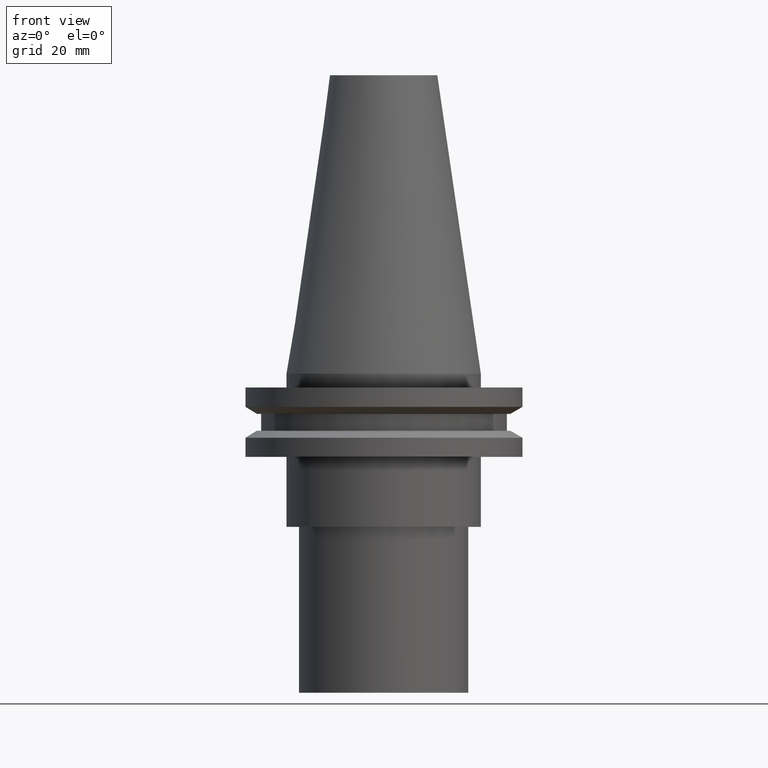
[diagram: clean part render]
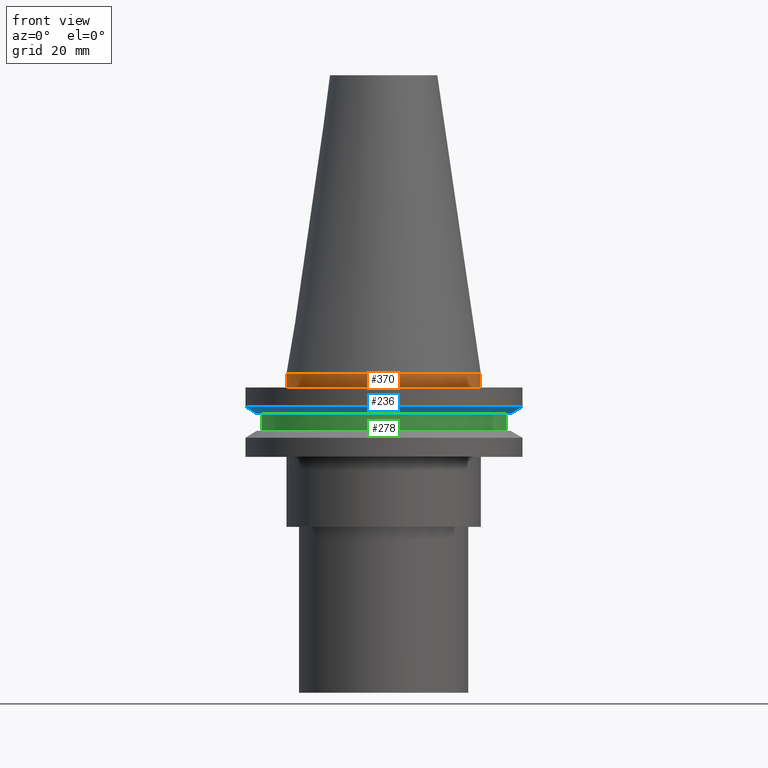
[diagram: same view with three faces highlighted in distinct colors, each labeled with its STEP entity id]
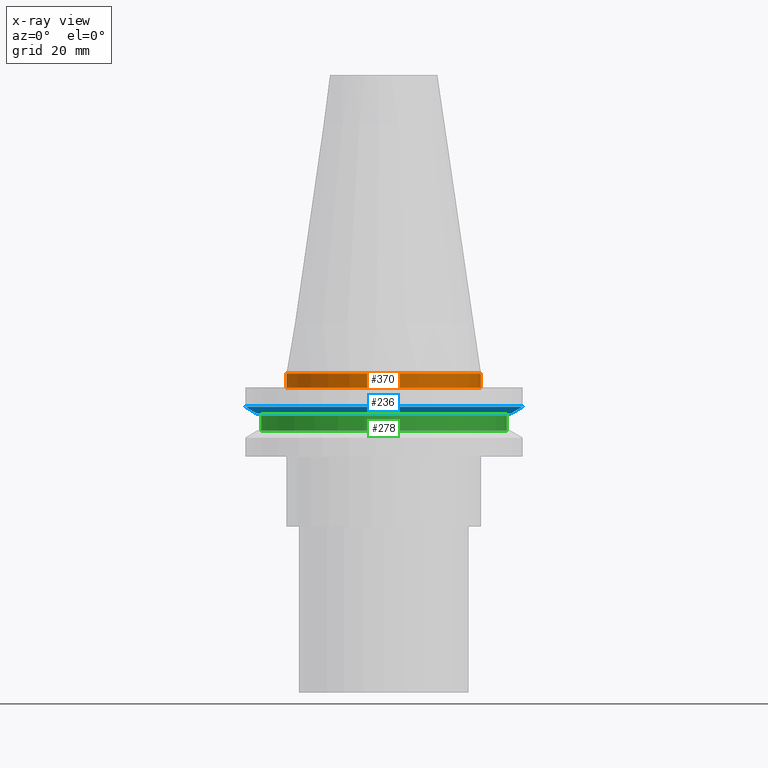
[diagram: x-ray of the same camera — body ghosted, the three highlighted faces saturated]
A machine part, front view with three faces highlighted in distinct colors.
The next image is the same camera in x-ray (body ghosted, the three faces saturated) — at least one of them is partly hidden behind the body in this view.
Their STEP definitions:

[orange] entity #370 — the highlighted cylindrical surface (bore or boss wall) has radius 22.225 mm, axis along (-0, -0, 1).
#37 = CIRCLE ( 'NONE', #250, 22.22500000000000142 ) ;
#88 = DIRECTION ( 'NONE',  ( -0.000000000000000000, -0.000000000000000000, 1.000000000000000000 ) ) ;
#89 = DIRECTION ( 'NONE',  ( -0.000000000000000000, -0.000000000000000000, 1.000000000000000000 ) ) ;
#100 = CARTESIAN_POINT ( 'NONE',  ( 22.22500000000000142, 0.000000000000000000, 0.000000000000000000 ) ) ;
#119 = AXIS2_PLACEMENT_3D ( 'NONE', #253, #299, #155 ) ;
#155 = DIRECTION ( 'NONE',  ( 1.000000000000000000, 0.000000000000000000, 0.000000000000000000 ) ) ;
#161 = CARTESIAN_POINT ( 'NONE',  ( 0.000000000000000000, 0.000000000000000000, 0.000000000000000000 ) ) ;
#169 = EDGE_CURVE ( 'NONE', #194, #194, #37, .T. ) ;
#171 = ORIENTED_EDGE ( 'NONE', *, *, #227, .T. ) ;
#175 = ORIENTED_EDGE ( 'NONE', *, *, #169, .F. ) ;
#181 = FACE_OUTER_BOUND ( 'NONE', #242, .T. ) ;
#194 = VERTEX_POINT ( 'NONE', #100 ) ;
#195 = EDGE_LOOP ( 'NONE', ( #175 ) ) ;
#212 = DIRECTION ( 'NONE',  ( 1.000000000000000000, 0.000000000000000000, 0.000000000000000000 ) ) ;
#227 = EDGE_CURVE ( 'NONE', #254, #254, #329, .T. ) ;
#242 = EDGE_LOOP ( 'NONE', ( #171 ) ) ;
#244 = FACE_OUTER_BOUND ( 'NONE', #195, .T. ) ;
#246 = AXIS2_PLACEMENT_3D ( 'NONE', #356, #88, #212 ) ;
#250 = AXIS2_PLACEMENT_3D ( 'NONE', #161, #89, #333 ) ;
#253 = CARTESIAN_POINT ( 'NONE',  ( 0.000000000000000000, 0.000000000000000000, -3.174999999999997158 ) ) ;
#254 = VERTEX_POINT ( 'NONE', #308 ) ;
#299 = DIRECTION ( 'NONE',  ( -0.000000000000000000, -0.000000000000000000, 1.000000000000000000 ) ) ;
#308 = CARTESIAN_POINT ( 'NONE',  ( 22.22500000000000142, 0.000000000000000000, -3.174999999999997158 ) ) ;
#329 = CIRCLE ( 'NONE', #119, 22.22500000000000142 ) ;
#333 = DIRECTION ( 'NONE',  ( 1.000000000000000000, 0.000000000000000000, 0.000000000000000000 ) ) ;
#356 = CARTESIAN_POINT ( 'NONE',  ( 0.000000000000000000, 0.000000000000000000, 68.25000000000000000 ) ) ;
#370 = ADVANCED_FACE ( 'NONE', ( #244, #181 ), #375, .T. ) ;
#375 = CYLINDRICAL_SURFACE ( 'NONE', #246, 22.22500000000000142 ) ;

[blue] entity #236 — the highlighted conical surface has half-angle 60 deg.
#5 = ORIENTED_EDGE ( 'NONE', *, *, #313, .F. ) ;
#11 = EDGE_LOOP ( 'NONE', ( #226 ) ) ;
#16 = FACE_BOUND ( 'NONE', #11, .T. ) ;
#34 = CIRCLE ( 'NONE', #218, 28.97919780457007732 ) ;
#46 = DIRECTION ( 'NONE',  ( 1.000000000000000000, 0.000000000000000000, 0.000000000000000000 ) ) ;
#63 = AXIS2_PLACEMENT_3D ( 'NONE', #174, #323, #380 ) ;
#93 = CONICAL_SURFACE ( 'NONE', #384, 28.97919780457007732, 1.047197551196598297 ) ;
#113 = EDGE_LOOP ( 'NONE', ( #5 ) ) ;
#150 = DIRECTION ( 'NONE',  ( -0.000000000000000000, -0.000000000000000000, 1.000000000000000000 ) ) ;
#174 = CARTESIAN_POINT ( 'NONE',  ( 0.000000000000000000, 0.000000000000000000, -7.605276606597335842 ) ) ;
#196 = CIRCLE ( 'NONE', #63, 31.75000000000000000 ) ;
#207 = CARTESIAN_POINT ( 'NONE',  ( 0.000000000000000000, 0.000000000000000000, -9.205000000000005400 ) ) ;
#214 = VERTEX_POINT ( 'NONE', #337 ) ;
#218 = AXIS2_PLACEMENT_3D ( 'NONE', #207, #318, #269 ) ;
#226 = ORIENTED_EDGE ( 'NONE', *, *, #339, .T. ) ;
#235 = CARTESIAN_POINT ( 'NONE',  ( 0.000000000000000000, 0.000000000000000000, -9.205000000000005400 ) ) ;
#236 = ADVANCED_FACE ( 'NONE', ( #301, #16 ), #93, .T. ) ;
#269 = DIRECTION ( 'NONE',  ( 1.000000000000000000, 0.000000000000000000, 0.000000000000000000 ) ) ;
#301 = FACE_OUTER_BOUND ( 'NONE', #113, .T. ) ;
#310 = CARTESIAN_POINT ( 'NONE',  ( 28.97919780457007732, 0.000000000000000000, -9.205000000000005400 ) ) ;
#313 = EDGE_CURVE ( 'NONE', #214, #214, #196, .T. ) ;
#318 = DIRECTION ( 'NONE',  ( -0.000000000000000000, -0.000000000000000000, 1.000000000000000000 ) ) ;
#323 = DIRECTION ( 'NONE',  ( -0.000000000000000000, -0.000000000000000000, 1.000000000000000000 ) ) ;
#330 = VERTEX_POINT ( 'NONE', #310 ) ;
#337 = CARTESIAN_POINT ( 'NONE',  ( 31.75000000000000000, 0.000000000000000000, -7.605276606597335842 ) ) ;
#339 = EDGE_CURVE ( 'NONE', #330, #330, #34, .T. ) ;
#380 = DIRECTION ( 'NONE',  ( 1.000000000000000000, 0.000000000000000000, 0.000000000000000000 ) ) ;
#384 = AXIS2_PLACEMENT_3D ( 'NONE', #235, #150, #46 ) ;

[green] entity #278 — the highlighted cylindrical surface (bore or boss wall) has radius 28.18 mm, axis along (-0, -0, 1).
#21 = CARTESIAN_POINT ( 'NONE',  ( 0.000000000000000000, 0.000000000000000000, -9.204999999999991189 ) ) ;
#29 = CARTESIAN_POINT ( 'NONE',  ( 28.17999999999999972, 0.000000000000000000, -13.05499999999999794 ) ) ;
#50 = DIRECTION ( 'NONE',  ( 1.000000000000000000, 0.000000000000000000, 0.000000000000000000 ) ) ;
#56 = DIRECTION ( 'NONE',  ( -0.000000000000000000, -0.000000000000000000, 1.000000000000000000 ) ) ;
#73 = CIRCLE ( 'NONE', #311, 28.17999999999999972 ) ;
#102 = ORIENTED_EDGE ( 'NONE', *, *, #168, .F. ) ;
#112 = FACE_OUTER_BOUND ( 'NONE', #173, .T. ) ;
#117 = EDGE_LOOP ( 'NONE', ( #261 ) ) ;
#147 = CARTESIAN_POINT ( 'NONE',  ( 0.000000000000000000, 0.000000000000000000, 68.25000000000000000 ) ) ;
#166 = CIRCLE ( 'NONE', #336, 28.17999999999999972 ) ;
#168 = EDGE_CURVE ( 'NONE', #361, #361, #166, .T. ) ;
#172 = DIRECTION ( 'NONE',  ( -0.000000000000000000, -0.000000000000000000, 1.000000000000000000 ) ) ;
#173 = EDGE_LOOP ( 'NONE', ( #102 ) ) ;
#176 = FACE_OUTER_BOUND ( 'NONE', #117, .T. ) ;
#180 = DIRECTION ( 'NONE',  ( 1.000000000000000000, 0.000000000000000000, 0.000000000000000000 ) ) ;
#192 = CARTESIAN_POINT ( 'NONE',  ( 28.17999999999999972, 0.000000000000000000, -9.204999999999991189 ) ) ;
#204 = DIRECTION ( 'NONE',  ( 1.000000000000000000, 0.000000000000000000, 0.000000000000000000 ) ) ;
#241 = CYLINDRICAL_SURFACE ( 'NONE', #316, 28.17999999999999972 ) ;
#261 = ORIENTED_EDGE ( 'NONE', *, *, #341, .T. ) ;
#278 = ADVANCED_FACE ( 'NONE', ( #112, #176 ), #241, .T. ) ;
#311 = AXIS2_PLACEMENT_3D ( 'NONE', #382, #56, #50 ) ;
#316 = AXIS2_PLACEMENT_3D ( 'NONE', #147, #172, #204 ) ;
#336 = AXIS2_PLACEMENT_3D ( 'NONE', #21, #362, #180 ) ;
#338 = VERTEX_POINT ( 'NONE', #29 ) ;
#341 = EDGE_CURVE ( 'NONE', #338, #338, #73, .T. ) ;
#361 = VERTEX_POINT ( 'NONE', #192 ) ;
#362 = DIRECTION ( 'NONE',  ( -0.000000000000000000, -0.000000000000000000, 1.000000000000000000 ) ) ;
#382 = CARTESIAN_POINT ( 'NONE',  ( 0.000000000000000000, 0.000000000000000000, -13.05499999999999794 ) ) ;